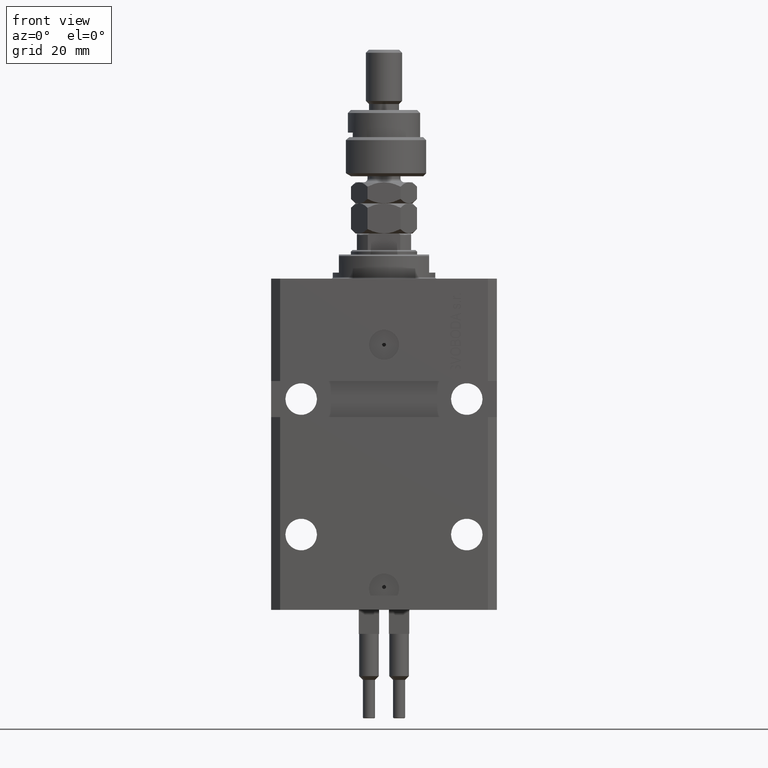
[diagram: clean part render]
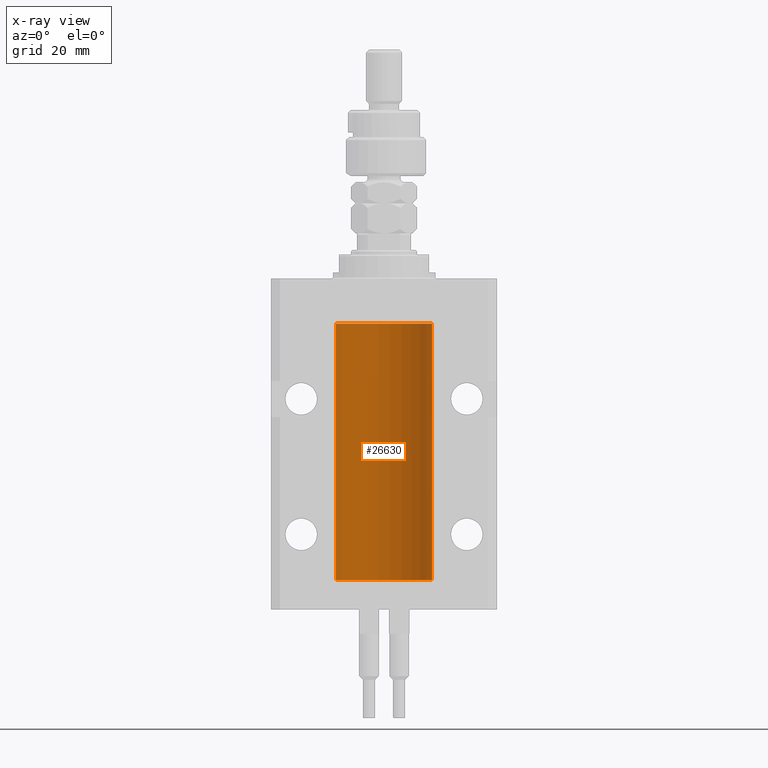
[diagram: x-ray — body ghosted, one internal face saturated and labeled with its STEP entity id]
A machine part, front view, then the same camera in x-ray: the body is ghosted and one INTERNAL B-rep face — a face not visible from any outside direction — is saturated and labeled: STEP entity #26630.
In plain terms, the highlighted cylindrical surface (partial cylindrical patch) has radius 16 mm, axis along (0, 0, 1).
Its self-contained STEP definition (entity closure, byte-faithful):
#25 = CYLINDRICAL_SURFACE ( 'NONE', #21653, 16.00000000000000000 ) ;
#1520 = B_SPLINE_CURVE_WITH_KNOTS ( 'NONE', 3,
 ( #5607, #21323, #41946, #2003, #30325, #46052, #49931, #26204, #13601, #29817, #34212, #45042, #21573, #37059 ),
 .UNSPECIFIED., .F., .F.,
 ( 4, 2, 2, 2, 2, 2, 4 ),
 ( 1.003919637555167698E-18, 0.0002442776652680894158, 0.0004885553305361776391, 0.0009771106610723541940, 0.001221388326340463017, 0.001465665991608572274, 0.001954221322144760863 ),
 .UNSPECIFIED. ) ;
#2003 = CARTESIAN_POINT ( 'NONE',  ( -15.99707730059171240, 0.3150375992092294686, -97.45402333202572720 ) ) ;
#2682 = CARTESIAN_POINT ( 'NONE',  ( 0.000000000000000000, 0.000000000000000000, -100.0999999999999943 ) ) ;
#2770 = EDGE_CURVE ( 'NONE', #12901, #4552, #47513, .T. ) ;
#3001 = LINE ( 'NONE', #7109, #12075 ) ;
#4200 = CIRCLE ( 'NONE', #33005, 16.00000000000000000 ) ;
#4552 = VERTEX_POINT ( 'NONE', #25999 ) ;
#5440 = VERTEX_POINT ( 'NONE', #49733 ) ;
#5607 = CARTESIAN_POINT ( 'NONE',  ( -16.00000000000000000, -1.303459030566954747E-14, -97.37500000000000000 ) ) ;
#5948 = ORIENTED_EDGE ( 'NONE', *, *, #29178, .T. ) ;
#6880 = EDGE_CURVE ( 'NONE', #7473, #25506, #3001, .T. ) ;
#7109 = CARTESIAN_POINT ( 'NONE',  ( -16.00000000000000000, 1.959434878635765131E-15, -100.0999999999999943 ) ) ;
#7473 = VERTEX_POINT ( 'NONE', #31390 ) ;
#7754 = DIRECTION ( 'NONE',  ( -0.000000000000000000, -0.000000000000000000, 1.000000000000000000 ) ) ;
#8906 = ORIENTED_EDGE ( 'NONE', *, *, #6880, .F. ) ;
#8978 = CARTESIAN_POINT ( 'NONE',  ( -16.00000000000000000, 1.959434878635765131E-15, -15.00000000000000000 ) ) ;
#9319 = CARTESIAN_POINT ( 'NONE',  ( -16.00000000000000000, 0.1631714642025800244, -22.62499999999985789 ) ) ;
#9374 = VECTOR ( 'NONE', #27917, 1000.000000000000000 ) ;
#9747 = LINE ( 'NONE', #25966, #49989 ) ;
#10253 = DIRECTION ( 'NONE',  ( -0.000000000000000000, -0.000000000000000000, 1.000000000000000000 ) ) ;
#10459 = EDGE_CURVE ( 'NONE', #5440, #42517, #9747, .T. ) ;
#10747 = CARTESIAN_POINT ( 'NONE',  ( 16.00000000000000000, 0.000000000000000000, -15.00000000000000000 ) ) ;
#11166 = DIRECTION ( 'NONE',  ( 1.000000000000000000, 0.000000000000000000, 0.000000000000000000 ) ) ;
#11506 = CARTESIAN_POINT ( 'NONE',  ( 0.000000000000000000, 0.000000000000000000, -15.00000000000000000 ) ) ;
#12075 = VECTOR ( 'NONE', #26437, 1000.000000000000000 ) ;
#12202 = CARTESIAN_POINT ( 'NONE',  ( -16.00000000000000000, 1.959434878635765131E-15, -100.0999999999999943 ) ) ;
#12901 = VERTEX_POINT ( 'NONE', #47960 ) ;
#13071 = LINE ( 'NONE', #16674, #17783 ) ;
#13447 = CARTESIAN_POINT ( 'NONE',  ( -15.99548640841683067, 0.3843705577988847377, -21.50046628527008608 ) ) ;
#13601 = CARTESIAN_POINT ( 'NONE',  ( -15.98844267028590949, 0.6088369347963275002, -98.16324735024325321 ) ) ;
#14145 = ORIENTED_EDGE ( 'NONE', *, *, #21417, .T. ) ;
#14621 = ORIENTED_EDGE ( 'NONE', *, *, #16543, .F. ) ;
#16543 = EDGE_CURVE ( 'NONE', #41338, #7473, #25530, .T. ) ;
#16674 = CARTESIAN_POINT ( 'NONE',  ( 16.00000000000000000, 0.000000000000000000, -100.0999999999999943 ) ) ;
#16698 = EDGE_CURVE ( 'NONE', #5440, #4552, #24328, .T. ) ;
#17053 = CARTESIAN_POINT ( 'NONE',  ( -15.98779057735153941, 0.6249419637998100407, -21.83670145863507273 ) ) ;
#17565 = CARTESIAN_POINT ( 'NONE',  ( -16.00000000000013145, 3.685127038166941002E-13, -22.62500000000341771 ) ) ;
#17783 = VECTOR ( 'NONE', #33176, 1000.000000000000000 ) ;
#18315 = EDGE_CURVE ( 'NONE', #12901, #25506, #1520, .T. ) ;
#19352 = DIRECTION ( 'NONE',  ( 1.000000000000000000, 0.000000000000000000, 0.000000000000000000 ) ) ;
#20410 = CARTESIAN_POINT ( 'NONE',  ( -15.99934216141748244, 0.1636497843296417787, -21.39126528029306229 ) ) ;
#21323 = CARTESIAN_POINT ( 'NONE',  ( -16.00000000000000711, 0.08259886010188650929, -97.37500000000000000 ) ) ;
#21402 = VERTEX_POINT ( 'NONE', #10747 ) ;
#21417 = EDGE_CURVE ( 'NONE', #21402, #42517, #4200, .T. ) ;
#21573 = CARTESIAN_POINT ( 'NONE',  ( -15.99999999999998934, 0.1631714642025804407, -98.62499999999987210 ) ) ;
#21653 = AXIS2_PLACEMENT_3D ( 'NONE', #42825, #7754, #19352 ) ;
#24328 = B_SPLINE_CURVE_WITH_KNOTS ( 'NONE', 3,
 ( #44387, #28647, #20410, #36916, #13447, #40513, #17053, #32783, #28907, #44638, #29164, #41035, #9319, #17565 ),
 .UNSPECIFIED., .F., .F.,
 ( 4, 2, 2, 2, 2, 2, 4 ),
 ( 1.597328219370744179E-19, 0.0002442776652680942405, 0.0004885553305361882643, 0.0009771106610723839011, 0.001221388326340481665, 0.001465665991608579430, 0.001954221322144767369 ),
 .UNSPECIFIED. ) ;
#24538 = CARTESIAN_POINT ( 'NONE',  ( -16.00000000000013145, 3.685127046438747128E-13, -98.62500000000343903 ) ) ;
#25506 = VERTEX_POINT ( 'NONE', #24538 ) ;
#25530 = CIRCLE ( 'NONE', #26382, 16.00000000000000000 ) ;
#25966 = CARTESIAN_POINT ( 'NONE',  ( -16.00000000000000000, 1.959434878635765131E-15, -100.0999999999999943 ) ) ;
#25999 = CARTESIAN_POINT ( 'NONE',  ( -16.00000000000013145, 3.685127038166941002E-13, -22.62500000000341771 ) ) ;
#26204 = CARTESIAN_POINT ( 'NONE',  ( -15.98778717651346604, 0.6250289588122097673, -98.08131585687051768 ) ) ;
#26382 = AXIS2_PLACEMENT_3D ( 'NONE', #2682, #46478, #11166 ) ;
#26437 = DIRECTION ( 'NONE',  ( -0.000000000000000000, -0.000000000000000000, 1.000000000000000000 ) ) ;
#26459 = DIRECTION ( 'NONE',  ( 1.000000000000000000, 0.000000000000000000, 0.000000000000000000 ) ) ;
#26630 = ADVANCED_FACE ( 'NONE', ( #27080 ), #25, .F. ) ;
#27080 = FACE_OUTER_BOUND ( 'NONE', #37263, .T. ) ;
#27216 = DIRECTION ( 'NONE',  ( 0.000000000000000000, 0.000000000000000000, 1.000000000000000000 ) ) ;
#27917 = DIRECTION ( 'NONE',  ( -0.000000000000000000, -0.000000000000000000, 1.000000000000000000 ) ) ;
#28574 = ORIENTED_EDGE ( 'NONE', *, *, #16698, .T. ) ;
#28647 = CARTESIAN_POINT ( 'NONE',  ( -16.00000000000000711, 0.08259886010189904093, -21.37500000000000000 ) ) ;
#28907 = CARTESIAN_POINT ( 'NONE',  ( -15.98844267028591482, 0.6088369347963316081, -22.16324735024328518 ) ) ;
#29164 = CARTESIAN_POINT ( 'NONE',  ( -15.99228023727724413, 0.5003781296993413674, -22.38347829554236057 ) ) ;
#29178 = EDGE_CURVE ( 'NONE', #41338, #21402, #13071, .T. ) ;
#29817 = CARTESIAN_POINT ( 'NONE',  ( -15.99070426498503572, 0.5462220647145610286, -98.31460064614144301 ) ) ;
#30325 = CARTESIAN_POINT ( 'NONE',  ( -15.99548640841682712, 0.3843705577988784650, -97.50046628527007897 ) ) ;
#31390 = CARTESIAN_POINT ( 'NONE',  ( -16.00000000000000000, 1.959434878635765131E-15, -100.0999999999999943 ) ) ;
#32783 = CARTESIAN_POINT ( 'NONE',  ( -15.98778717651346071, 0.6250289588122140971, -22.08131585687052478 ) ) ;
#33005 = AXIS2_PLACEMENT_3D ( 'NONE', #11506, #27216, #26459 ) ;
#33176 = DIRECTION ( 'NONE',  ( -0.000000000000000000, -0.000000000000000000, 1.000000000000000000 ) ) ;
#34212 = CARTESIAN_POINT ( 'NONE',  ( -15.99228023727724057, 0.5003781296993360383, -98.38347829554236057 ) ) ;
#36916 = CARTESIAN_POINT ( 'NONE',  ( -15.99707730059171240, 0.3150375992092407373, -21.45402333202571654 ) ) ;
#37059 = CARTESIAN_POINT ( 'NONE',  ( -16.00000000000013145, 3.685127046438747128E-13, -98.62500000000343903 ) ) ;
#37263 = EDGE_LOOP ( 'NONE', ( #8906, #14621, #5948, #14145, #43793, #28574, #45344, #38745 ) ) ;
#38745 = ORIENTED_EDGE ( 'NONE', *, *, #18315, .T. ) ;
#40513 = CARTESIAN_POINT ( 'NONE',  ( -15.99070653155267685, 0.5573233280232986475, -21.67348148680506625 ) ) ;
#41035 = CARTESIAN_POINT ( 'NONE',  ( -15.99711699979842017, 0.3253759916140657737, -22.55856151623175521 ) ) ;
#41338 = VERTEX_POINT ( 'NONE', #46629 ) ;
#41946 = CARTESIAN_POINT ( 'NONE',  ( -15.99934216141748244, 0.1636497843296308152, -97.39126528029306940 ) ) ;
#42517 = VERTEX_POINT ( 'NONE', #8978 ) ;
#42825 = CARTESIAN_POINT ( 'NONE',  ( 0.000000000000000000, 0.000000000000000000, -100.0999999999999943 ) ) ;
#43793 = ORIENTED_EDGE ( 'NONE', *, *, #10459, .F. ) ;
#44387 = CARTESIAN_POINT ( 'NONE',  ( -16.00000000000000000, 1.643679961284177128E-16, -21.37499999999999645 ) ) ;
#44638 = CARTESIAN_POINT ( 'NONE',  ( -15.99070426498503217, 0.5462220647145618058, -22.31460064614143590 ) ) ;
#45042 = CARTESIAN_POINT ( 'NONE',  ( -15.99711699979841661, 0.3253759916140614439, -98.55856151623174810 ) ) ;
#45344 = ORIENTED_EDGE ( 'NONE', *, *, #2770, .F. ) ;
#46052 = CARTESIAN_POINT ( 'NONE',  ( -15.99070653155267685, 0.5573233280232928744, -97.67348148680505915 ) ) ;
#46478 = DIRECTION ( 'NONE',  ( 0.000000000000000000, 0.000000000000000000, 1.000000000000000000 ) ) ;
#46629 = CARTESIAN_POINT ( 'NONE',  ( 16.00000000000000000, 0.000000000000000000, -100.0999999999999943 ) ) ;
#47513 = LINE ( 'NONE', #12202, #9374 ) ;
#47960 = CARTESIAN_POINT ( 'NONE',  ( -16.00000000000000000, -1.303459030566954747E-14, -97.37500000000000000 ) ) ;
#49733 = CARTESIAN_POINT ( 'NONE',  ( -16.00000000000000000, 1.643679961284177128E-16, -21.37499999999999645 ) ) ;
#49931 = CARTESIAN_POINT ( 'NONE',  ( -15.98779057735153941, 0.6249419637998017141, -97.83670145863504786 ) ) ;
#49989 = VECTOR ( 'NONE', #10253, 1000.000000000000000 ) ;